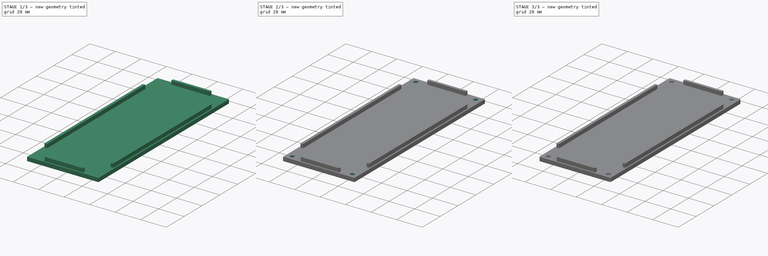
[diagram: build sequence overview — one tinted view per stage of 3, left to right]
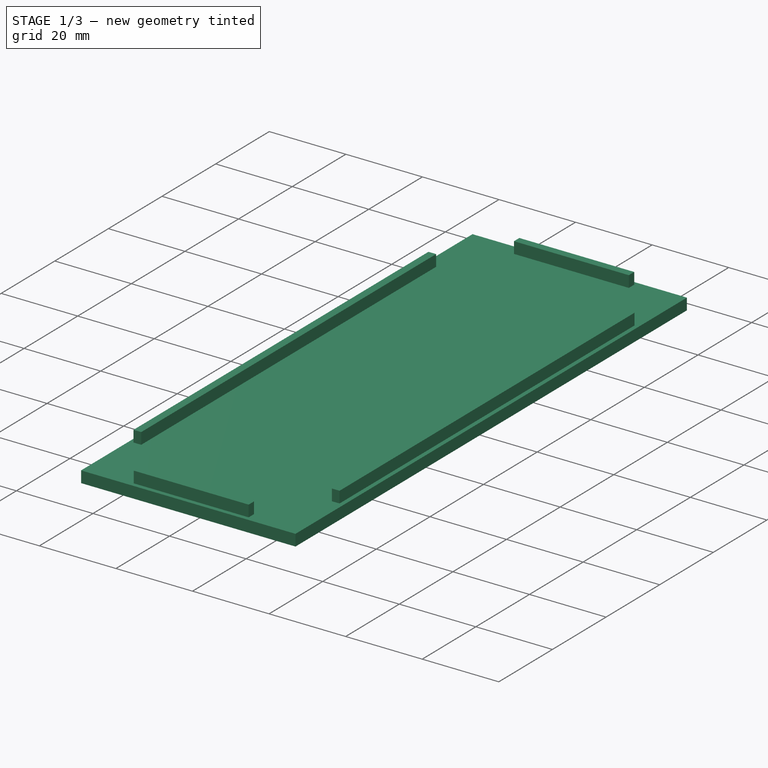
[diagram: stage 1 of 3 — iso view after this stage's code; geometry added in this stage tinted green]
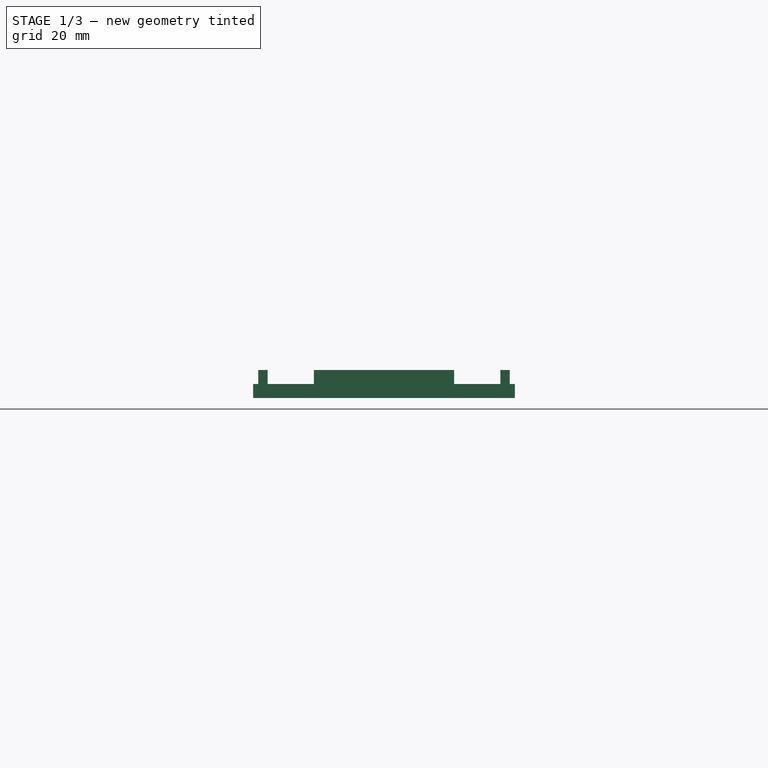
[diagram: stage 1 of 3 — front view after this stage's code; geometry added in this stage tinted green]
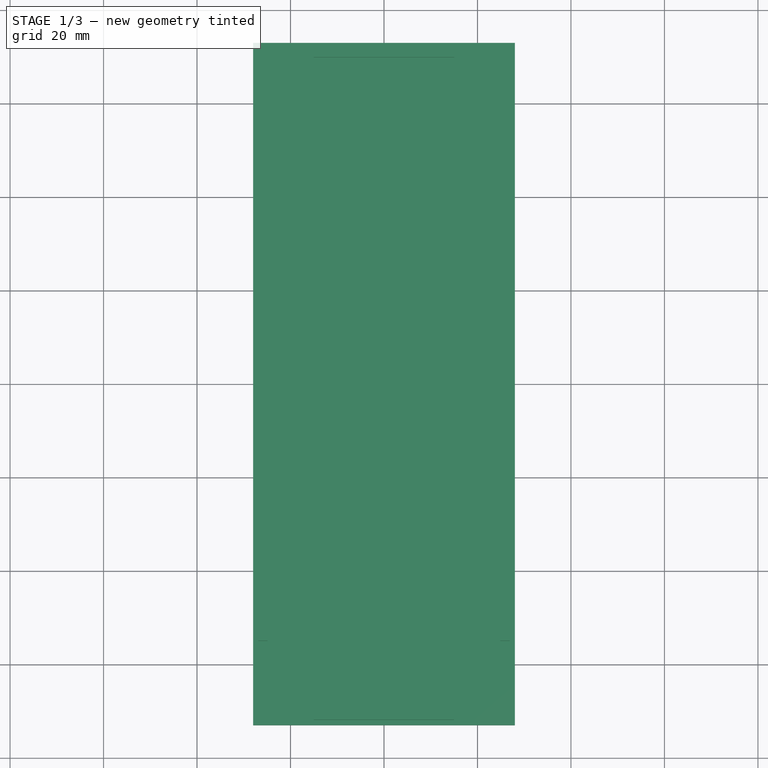
[diagram: stage 1 of 3 — top view after this stage's code; geometry added in this stage tinted green]
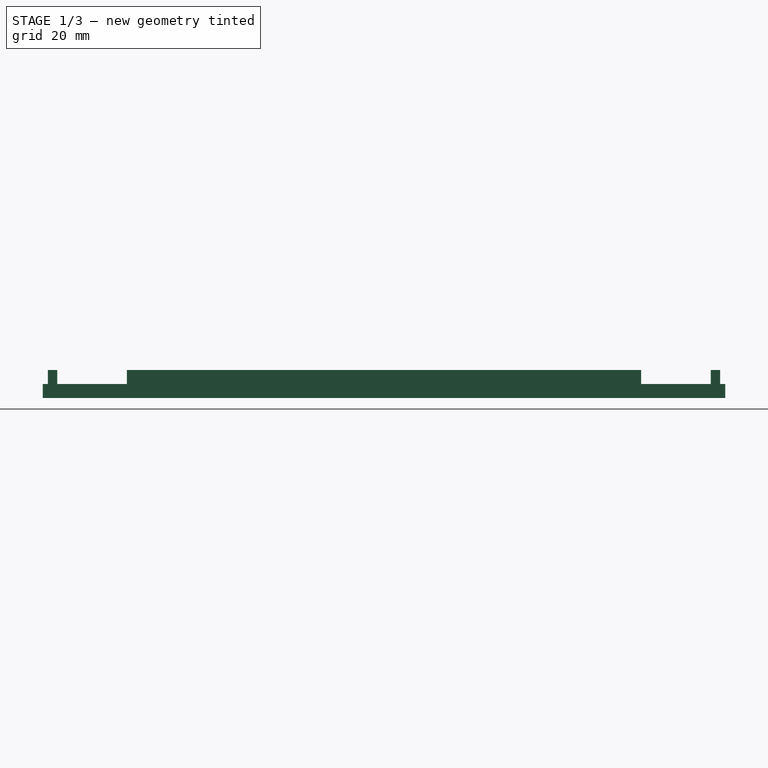
[diagram: stage 1 of 3 — right view after this stage's code; geometry added in this stage tinted green]
FCSTD DOCUMENT  (FreeCAD 0.19R24276 (Git))
Label: eBike_12v_charger_bottem
License: All rights reserved
LicenseURL: http://en.wikipedia.org/wiki/All_rights_reserved
objects: Sketcher::SketchObject×3, PartDesign::Pad×2, PartDesign::Pocket×1, PartDesign::Chamfer×1, PartDesign::Fillet×1, PartDesign::Body×1
note: 14 computed .brp shape members not serialized (recipe doc carries the construction recipe); baked Part::Feature solids carry a one-line shape summary decoded from their .brp

FEATURE [Sketcher::SketchObject] Sketch
  FullyConstrained = true
  MapMode = 5
  Support = -> [XY_Plane]
  sketch-geometry (4):
    g0: LineSegment StartX=-28 StartY=73 StartZ=0 EndX=28 EndY=73 EndZ=0
    g1: LineSegment StartX=28 StartY=73 StartZ=0 EndX=28 EndY=-73 EndZ=0
    g2: LineSegment StartX=28 StartY=-73 StartZ=0 EndX=-28 EndY=-73 EndZ=0
    g3: LineSegment StartX=-28 StartY=-73 StartZ=0 EndX=-28 EndY=73 EndZ=0
  constraints (10):
    c: Coincident(g0,g1)
    c: Coincident(g1,g2)
    c: Coincident(g2,g3)
    c: Coincident(g3,g0)
    c: Horizontal(g2)
    c: Vertical(g3)
    c: DistanceX(g0,g0) = 56
    c: DistanceY(g1,g1) = 146
    c: Symmetric(g0,g0,g-2)
    c: Symmetric(g0,g1,g-1)
FEATURE [PartDesign::Pad] Pad
  Direction = (1,1,1)
  Length = 3
  Length2 = 100
  Profile = -> Sketch
  Type = 0
FEATURE [Sketcher::SketchObject] Sketch001
  ExternalGeometry = -> [Pad]
  FullyConstrained = true
  MapMode = 5
  Placement = pos=(0,0,3) rot=(0,0,1;0rad)
  Support = -> [Pad]
  sketch-geometry (16):
    g0: LineSegment StartX=-26.9 StartY=55 StartZ=0 EndX=-24.9 EndY=55 EndZ=0
    g1: LineSegment StartX=-24.9 StartY=55 StartZ=0 EndX=-24.9 EndY=-55 EndZ=0
    g2: LineSegment StartX=-24.9 StartY=-55 StartZ=0 EndX=-26.9 EndY=-55 EndZ=0
    g3: LineSegment StartX=-26.9 StartY=-55 StartZ=0 EndX=-26.9 EndY=55 EndZ=0
    g4: LineSegment StartX=24.9 StartY=55 StartZ=0 EndX=26.9 EndY=55 EndZ=0
    g5: LineSegment StartX=26.9 StartY=55 StartZ=0 EndX=26.9 EndY=-55 EndZ=0
    g6: LineSegment StartX=26.9 StartY=-55 StartZ=0 EndX=24.9 EndY=-55 EndZ=0
    g7: LineSegment StartX=24.9 StartY=-55 StartZ=0 EndX=24.9 EndY=55 EndZ=0
    g8: LineSegment StartX=-15 StartY=71.9 StartZ=0 EndX=15 EndY=71.9 EndZ=0
    g9: LineSegment StartX=15 StartY=71.9 StartZ=0 EndX=15 EndY=69.9 EndZ=0
    g10: LineSegment StartX=15 StartY=69.9 StartZ=0 EndX=-15 EndY=69.9 EndZ=0
    g11: LineSegment StartX=-15 StartY=69.9 StartZ=0 EndX=-15 EndY=71.9 EndZ=0
    g12: LineSegment StartX=-15 StartY=-69.9 StartZ=0 EndX=15 EndY=-69.9 EndZ=0
    g13: LineSegment StartX=15 StartY=-69.9 StartZ=0 EndX=15 EndY=-71.9 EndZ=0
    g14: LineSegment StartX=15 StartY=-71.9 StartZ=0 EndX=-15 EndY=-71.9 EndZ=0
    g15: LineSegment StartX=-15 StartY=-71.9 StartZ=0 EndX=-15 EndY=-69.9 EndZ=0
  constraints (44):
    c: Coincident(g0,g1)
    c: Coincident(g1,g2)
    c: Coincident(g2,g3)
    c: Coincident(g3,g0)
    c: Horizontal(g0)
    c: Horizontal(g2)
    c: Vertical(g3)
    c: Coincident(g4,g5)
    c: Coincident(g5,g6)
    c: Coincident(g6,g7)
    c: Coincident(g7,g4)
    c: Horizontal(g4)
    c: Horizontal(g6)
    c: Vertical(g5)
    c: DistanceY(g1,g1) = 110
    c: Equal(g1,g7)
    c: Symmetric(g0,g1,g-1)
    c: Symmetric(g4,g6,g-1)
    c: DistanceX(g-3,g0) = 1.1
    c: DistanceX(g4,g-4) = 1.1
    c: DistanceX(g0,g0) = 2
    c: Equal(g0,g4)
    c: Coincident(g8,g9)
    c: Coincident(g9,g10)
    c: Coincident(g10,g11)
    c: Coincident(g11,g8)
    c: Horizontal(g10)
    c: Vertical(g9)
    c: Vertical(g11)
    c: Coincident(g12,g13)
    c: Coincident(g13,g14)
    c: Coincident(g14,g15)
    c: Coincident(g15,g12)
    c: Horizontal(g12)
    c: Vertical(g13)
    c: Vertical(g15)
    c: DistanceX(g8,g8) = 30
    c: Equal(g8,g14)
    c: Symmetric(g8,g8,g-2)
    c: Symmetric(g14,g13,g-2)
    c: DistanceY(g-4,g13) = 1.1
    c: DistanceY(g8,g-4) = 1.1
    c: DistanceY(g9,g9) = 2
    c: Equal(g9,g13)
FEATURE [PartDesign::Pad] Pad001
  BaseFeature = -> Pad
  Direction = (1,1,1)
  Length = 3
  Length2 = 100
  Profile = -> Sketch001
  Type = 0
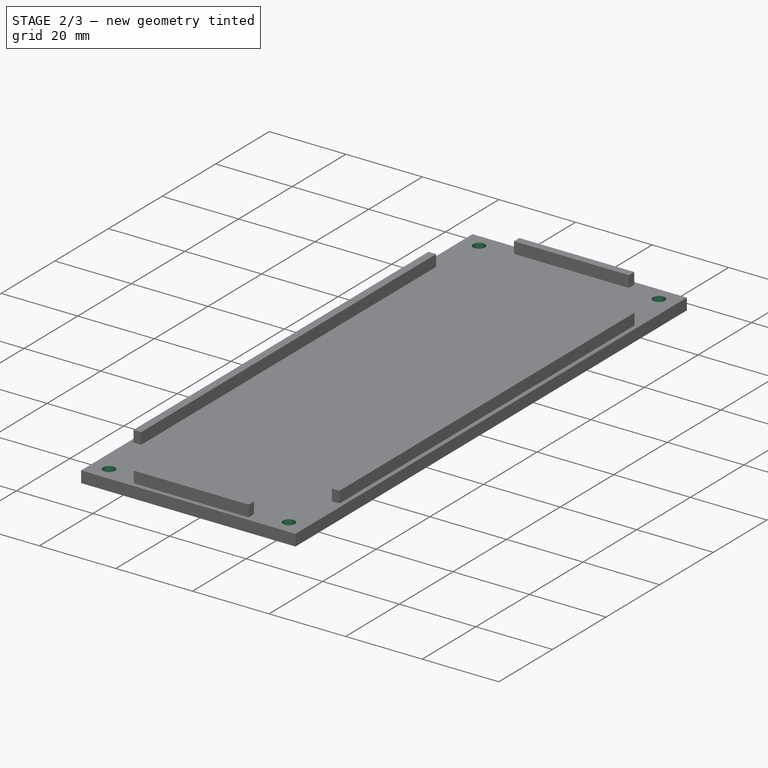
[diagram: stage 2 of 3 — iso view after this stage's code; geometry added in this stage tinted green]
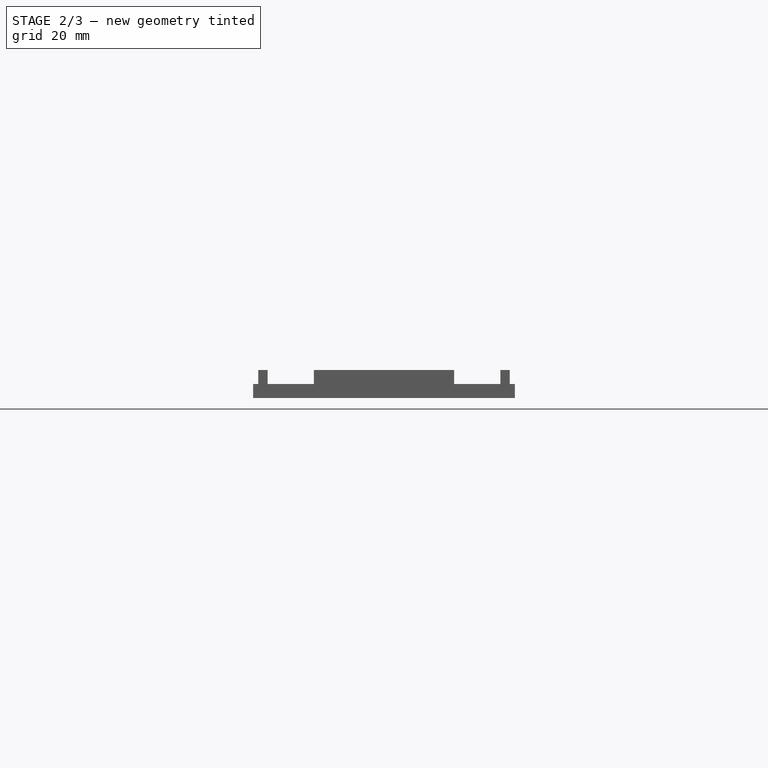
[diagram: stage 2 of 3 — front view after this stage's code; geometry added in this stage tinted green]
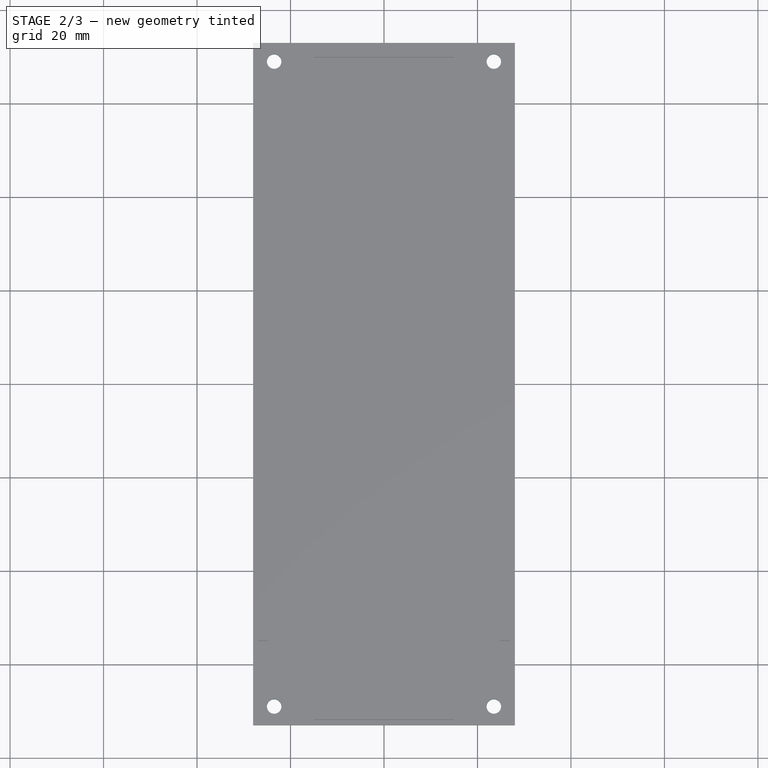
[diagram: stage 2 of 3 — top view after this stage's code; geometry added in this stage tinted green]
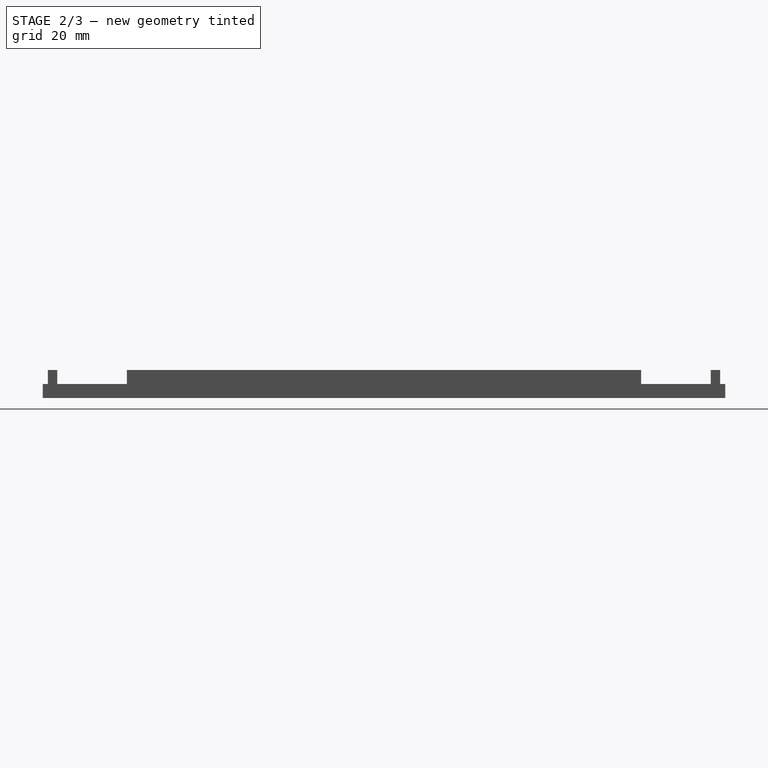
[diagram: stage 2 of 3 — right view after this stage's code; geometry added in this stage tinted green]
FEATURE [Sketcher::SketchObject] Sketch002
  FullyConstrained = true
  MapMode = 5
  Placement = pos=(0,0,0) rot=(1,0,0;3.14159rad)
  Support = -> [Pad001]
  sketch-geometry (8):
    g0: LineSegment StartX=-23.5 StartY=69 StartZ=0 EndX=23.5 EndY=69 EndZ=0
    g1: LineSegment StartX=23.5 StartY=69 StartZ=0 EndX=23.5 EndY=-69 EndZ=0
    g2: LineSegment StartX=23.5 StartY=-69 StartZ=0 EndX=-23.5 EndY=-69 EndZ=0
    g3: LineSegment StartX=-23.5 StartY=-69 StartZ=0 EndX=-23.5 EndY=69 EndZ=0
    g4: Circle CenterX=-23.5 CenterY=69 CenterZ=0 NormalX=0 NormalY=0 NormalZ=1 AngleXU=0 Radius=1.55
    g5: Circle CenterX=23.5 CenterY=69 CenterZ=0 NormalX=0 NormalY=0 NormalZ=1 AngleXU=0 Radius=1.55
    g6: Circle CenterX=-23.5 CenterY=-69 CenterZ=0 NormalX=0 NormalY=0 NormalZ=1 AngleXU=0 Radius=1.55
    g7: Circle CenterX=23.5 CenterY=-69 CenterZ=0 NormalX=0 NormalY=0 NormalZ=1 AngleXU=0 Radius=1.55
  constraints (18):
    c: Coincident(g0,g1)
    c: Coincident(g1,g2)
    c: Coincident(g2,g3)
    c: Coincident(g3,g0)
    c: Horizontal(g2)
    c: Vertical(g3)
    c: DistanceX(g0,g0) = 47
    c: DistanceY(g1,g1) = 138
    c: Symmetric(g0,g0,g-2)
    c: Symmetric(g0,g1,g-1)
    c: Coincident(g4,g0)
    c: Coincident(g5,g0)
    c: Coincident(g6,g2)
    c: Coincident(g7,g1)
    c: Radius(g4) = 1.55
    c: Equal(g4,g5)
    c: Equal(g4,g6)
    c: Equal(g4,g7)
FEATURE [PartDesign::Pocket] Pocket
  BaseFeature = -> Pad001
  Length = 3
  Length2 = 100
  Profile = -> Sketch002
  Type = 0
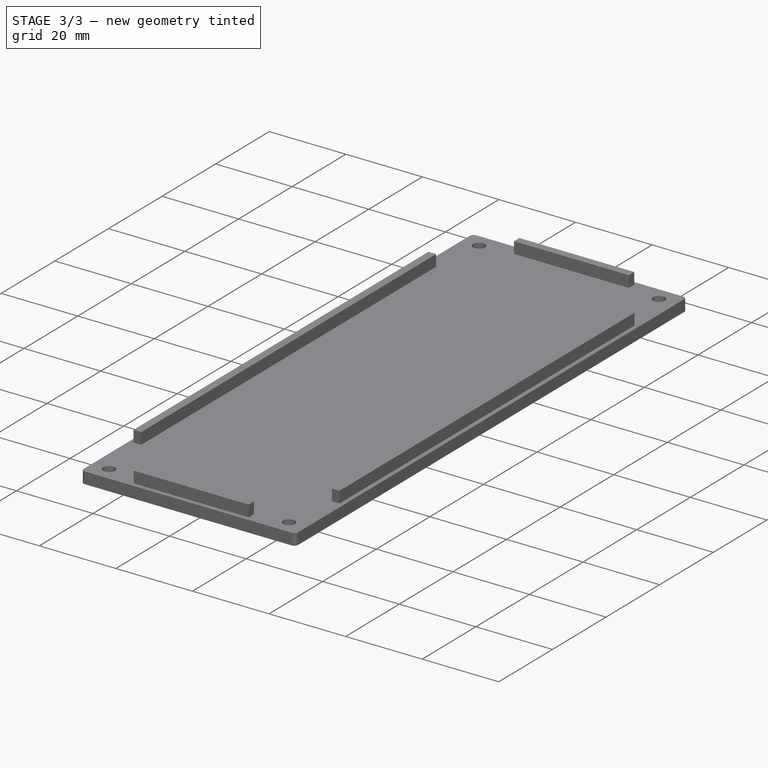
[diagram: stage 3 of 3 — iso view after this stage's code; geometry added in this stage tinted green]
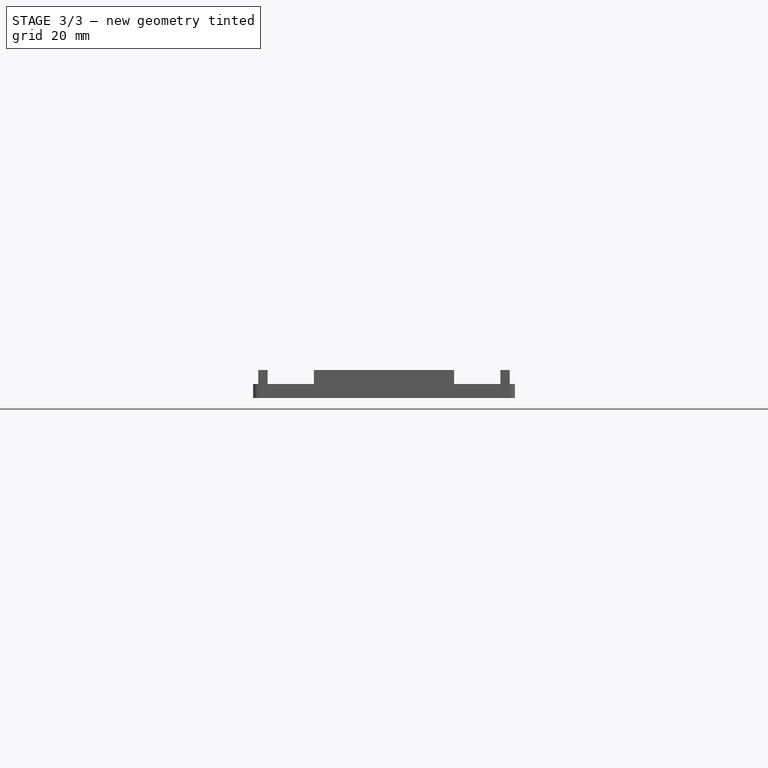
[diagram: stage 3 of 3 — front view after this stage's code; geometry added in this stage tinted green]
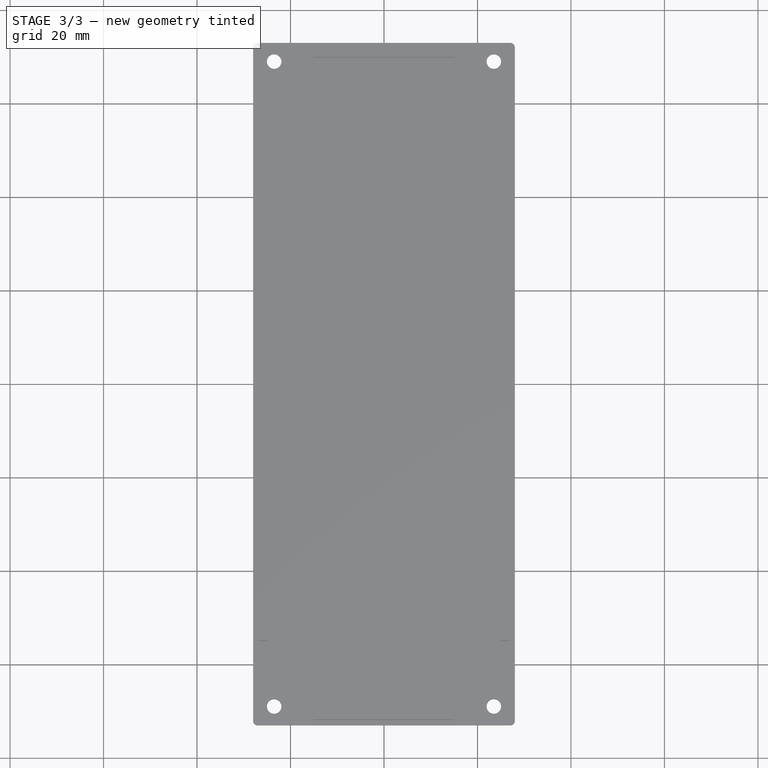
[diagram: stage 3 of 3 — top view after this stage's code; geometry added in this stage tinted green]
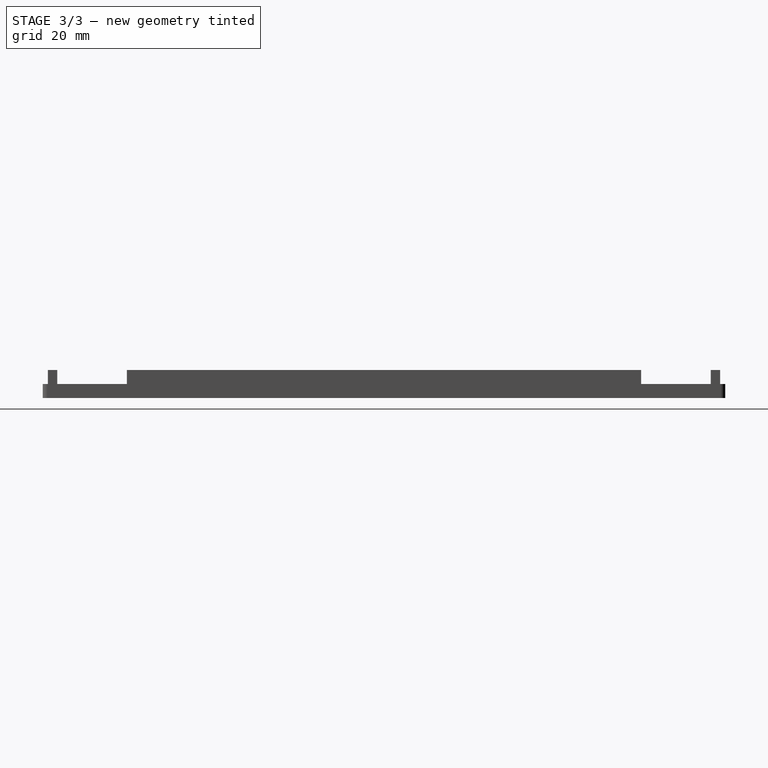
[diagram: stage 3 of 3 — right view after this stage's code; geometry added in this stage tinted green]
FEATURE [PartDesign::Chamfer] Chamfer
  Angle = 45
  Base = -> Pocket [Edge13,Edge12,Edge15,Edge14]
  BaseFeature = -> Pocket
  ChamferType = 0
  FlipDirection = false
  Size = 1.5
  Size2 = 1
  SupportTransform = false
FEATURE [PartDesign::Fillet] Fillet
  Base = -> Chamfer [Edge14,Edge16,Edge11,Edge12]
  BaseFeature = -> Chamfer
  Radius = 1
  SupportTransform = false
FEATURE [PartDesign::Body] Body
  Group = -> [Sketch,Pad,Sketch001,Pad001,Sketch002,Pocket,Chamfer,Fillet]
  Origin = -> Origin
  Tip = -> Fillet
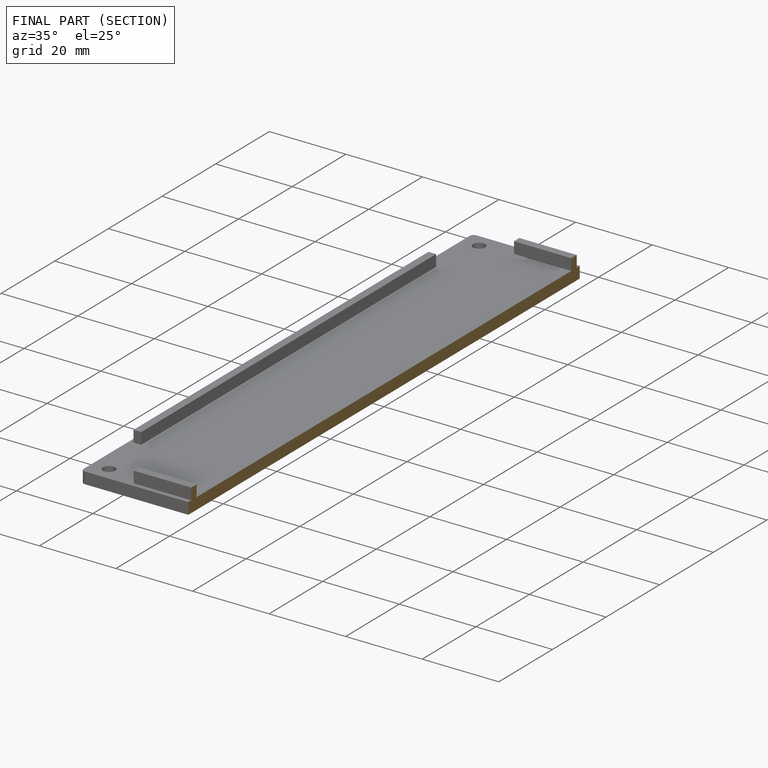
[diagram: finished part — half-section view (interior)]
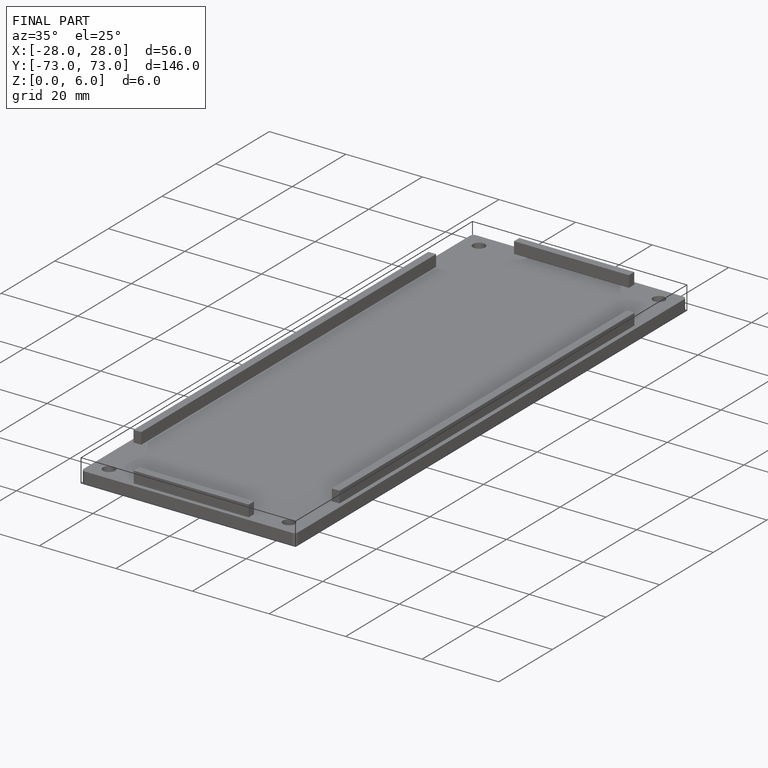
[diagram: finished part — iso view with bounding-box wireframe]
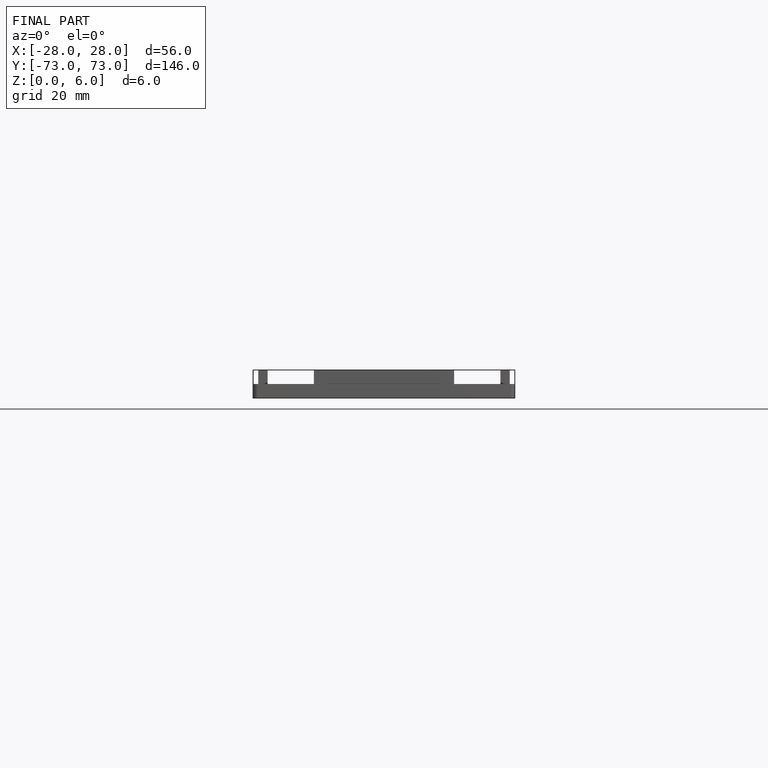
[diagram: finished part — front view with bounding-box wireframe]
